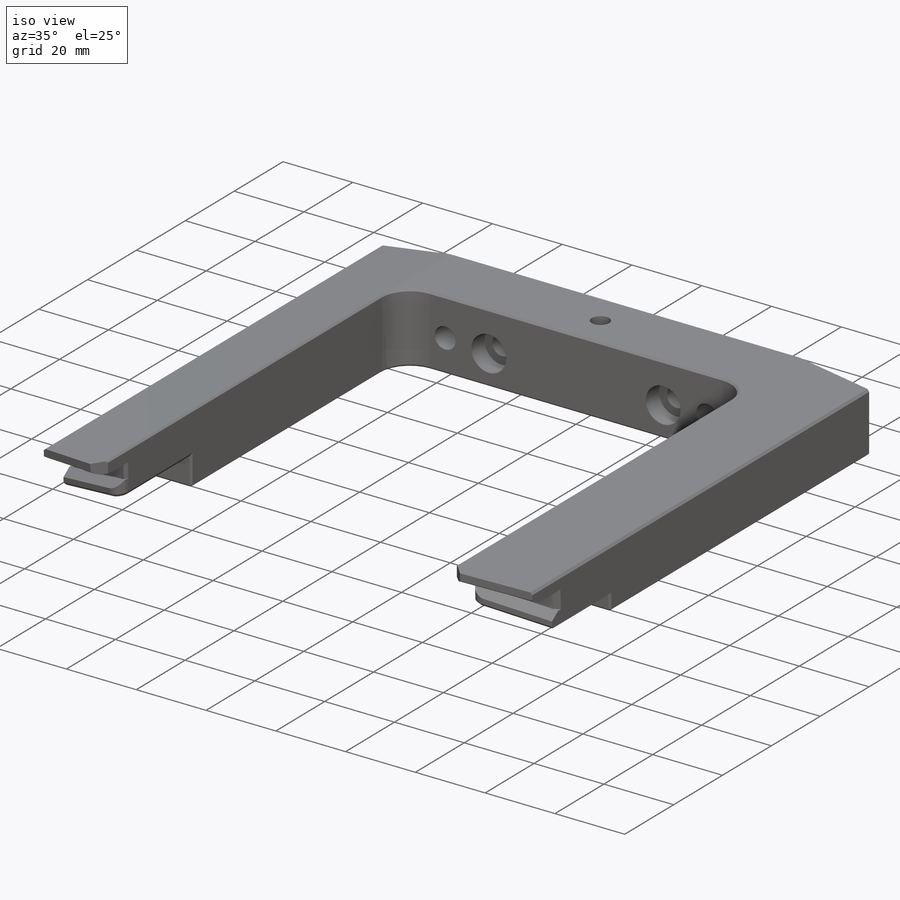
[diagram: iso view]
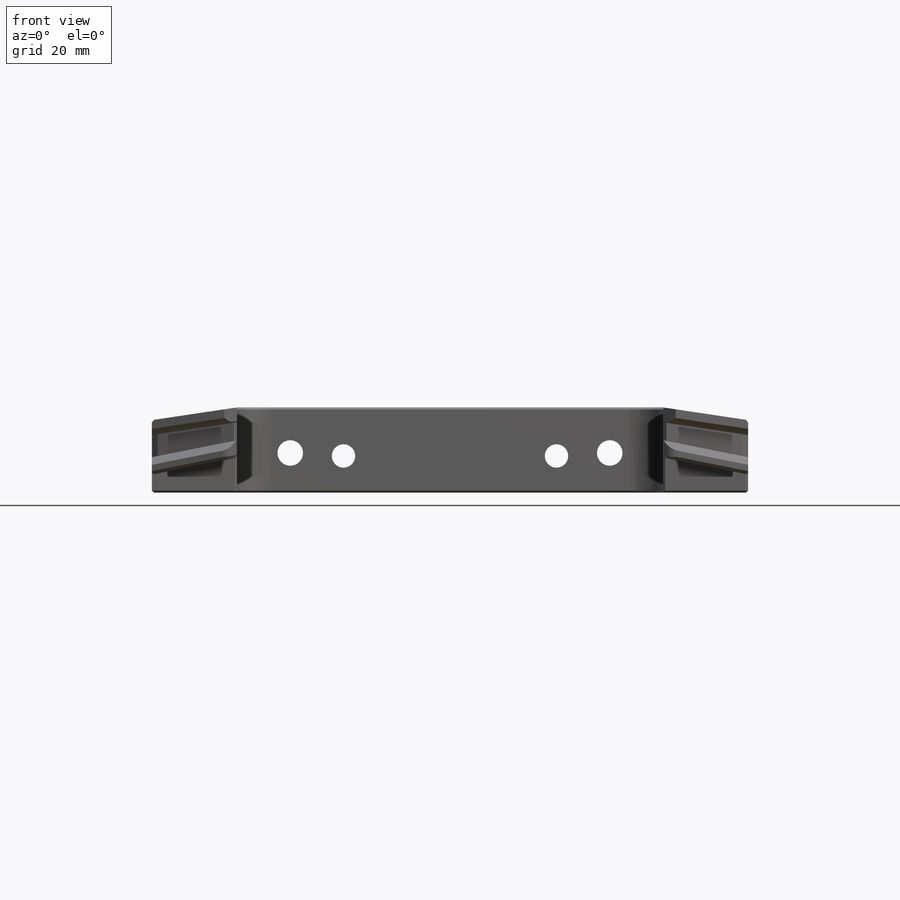
[diagram: front view]
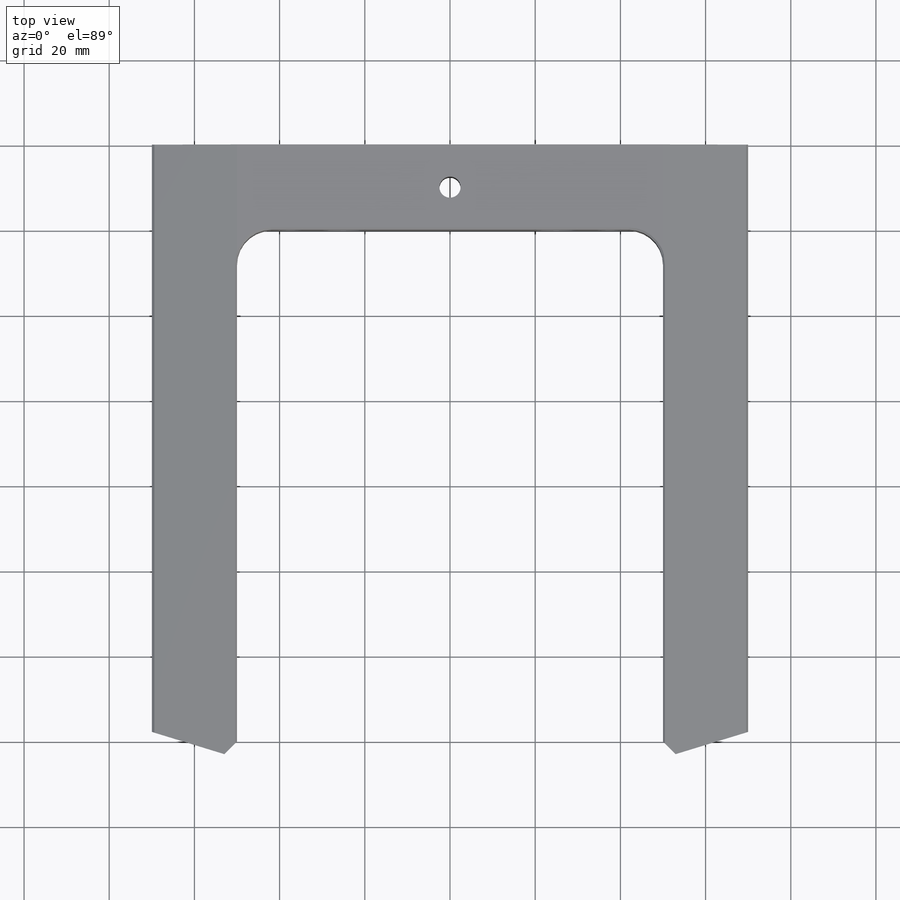
[diagram: top view]
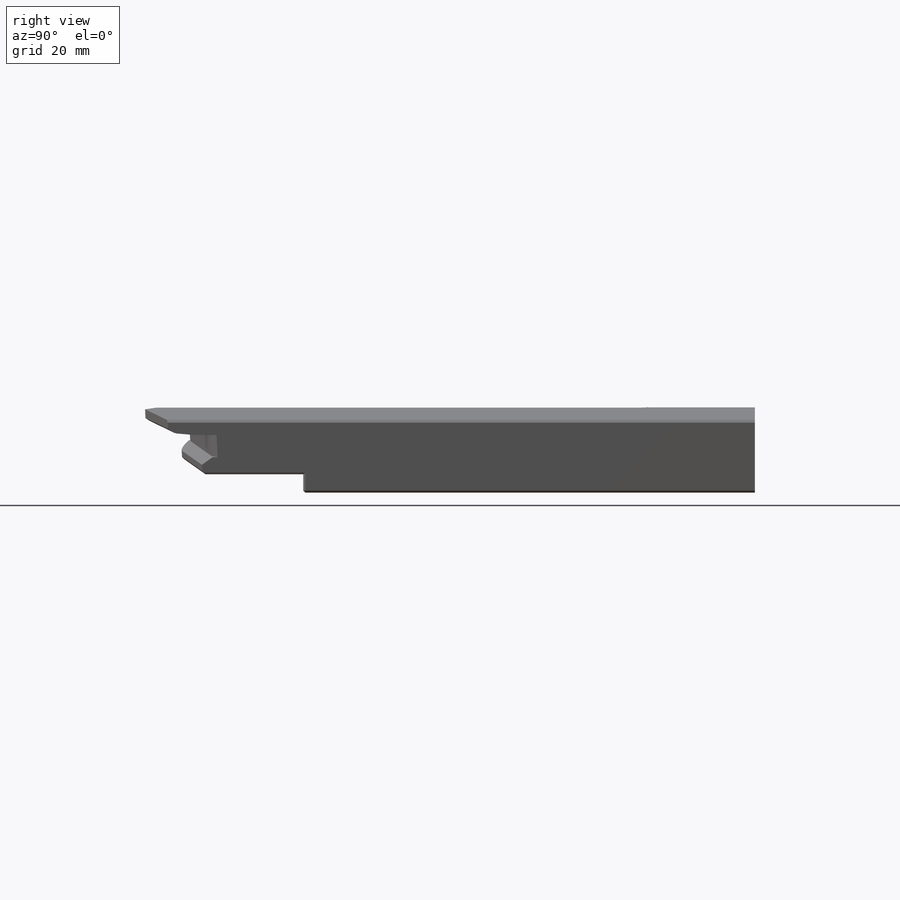
[diagram: right view]
SOLIDWORKS PART (.sldprt)
format: sldprt  version: not decoded by parser v0  size: 911,872 bytes
history: native  units: mm
features: sketch x33, cut_extrude x15, chamfer x10, extrude x8, plane x7, hole x4, thread x3, fillet x2, material x1, sweep x1 (+8 scaffold rows collapsed)
feature tree (92):
  scaffold x8  (default folders/planes/origin — collapsed)
  material  "2014 Legierung"
  plane  "Ebene vorne"
  plane  "Ebene oben"
  plane  "Ebene rechts"
  sketch  "Skizze1"  dims[D1=140.0mm D2=20.0mm]
  extrude  "Linear austragen1"  Depth=140mm
  sketch  "Skizze2"  dims[c1.D2=207.0mm c1.D6=90.0mm c1.D7=8.0mm c1.D1=100.0mm c1.D3=20.0mm c1.D4=85.0mm c1.D5=~0.923929mm c2.D4=185.0mm c2.D3=12.5mm c3.D4=120.0mm c3.D5=68.0mm c3.D2=35.0mm c4.D5=47.0mm]
  cut_extrude  "Schnitt-Linear austragen1"  [1 undecoded]
  sketch  "Skizze3"  dims[D1=20.0mm]
  extrude  "Linear austragen2"  Depth=25mm
  plane  "Ebene1"
  sketch  "Skizze7"  dims[c1.D1=20.0mm c2.D1=8.5deg]
  cut_extrude  "Schnitt-Linear austragen4"  [1 undecoded]
  hole  "M5"  Diameter=4.2mm Depth=14mm
  sketch  "Skizze9"  dims[c1.D1=18.0mm c1.D2=50.0mm c1.D3=25.0mm c2.D1=27.0mm]
  sketch  "Skizze8"  dims[hole-wizard template sketch: 46 standard entries collapsed; hole parameters kept: c15.Bohrerdurchmesser=4.2mm c15.Bohrungstiefe=14.0mm c15.D3=~14.816244mm c15.Spitzenwinkel=118.0deg]
  thread  "Bohrungsgewinde3"  Diameter=10mm  [1 undecoded]
  thread  "Bohrungsgewinde4"  Diameter=10mm  [1 undecoded]
  hole  "ø4H7 (2x)"  Diameter=4mm Depth=10mm
  sketch  "Skizze11"  dims[D1=40.0mm]
  sketch  "Skizze10"  dims[hole-wizard template sketch: 46 standard entries collapsed; hole parameters kept: c15.Bohrerdurchmesser=4.0mm c15.Bohrungstiefe=10.0mm c15.D3=~14.816244mm c15.Spitzenwinkel=118.0deg]
  chamfer  "Fase1"  Distance=7.5mm Angle=45deg
  sketch  "Skizze12"  dims[D1=3.5mm D2=~20.000003mm]
  cut_extrude  "Schnitt-Linear austragen5"  Depth=27.74mm
  sketch  "Skizze17"  dims[c1.D1=~20.252542mm c2.D1=~1.127483deg c3.D1=4.5mm c3.D2=3.0mm c4.D1=4.8mm c4.D2=~20.22957mm c5.D2=10.0deg c5.D1=1.0mm]
  cut_extrude  "Schnitt-Linear austragen6"  Depth=10mm
  chamfer  "Einführschräge"  Distance=1.5mm Angle=10deg
  sketch  "Skizze22"
  extrude  "Linear austragen4"  Depth=10mm
  sketch  "Skizze23"  dims[c1.D1=~141.862888mm c2.D1=90.0mm c2.D2=86.0mm c2.D3=23.0mm c3.D1=~20.215193mm c4.D1=15.5deg c4.D2=126.0mm c4.D3=5.0mm c4.D4=5.0mm c4.D5=15.0mm c5.D1=4.0mm]
  cut_extrude  "Schnitt-Linear austragen7"  Depth=8mm
  sketch  "Skizze24"  dims[c1.D1=5.0mm c1.D2=5.0mm c1.D3=126.0mm c1.D4=~20.215193mm c2.D4=15.5deg c2.D5=15.0mm]
  cut_extrude  "Schnitt-Linear austragen8"  Depth=8mm
  chamfer  "Fase5"  Distance=1mm Angle=45deg
  sketch  "Skizze26"  dims[D1=0.0mm D2=0.0mm]
  extrude  "Linear austragen5"  Depth=35.15mm
  chamfer  "Fase6"  Distance=3mm Angle=45deg
  sketch  "Skizze28"  dims[c1.D1=~17.188804mm c2.D1=17.0deg]
  cut_extrude  "Schnitt-Linear austragen9"  [1 undecoded]
  sketch  "Skizze29"  dims[c1.D1=~20.627272mm c2.D1=17.0deg]
  cut_extrude  "Schnitt-Linear austragen10"  [1 undecoded]
  chamfer  "Fase7"  Distance=6mm Angle=5deg
  plane  "Ebene2"
  sketch  "Skizze31"  dims[c1.D1=4.0mm c1.D2=~20.222123mm c2.D2=~8.858984deg c2.D1=4.2mm c3.D2=5.2mm]
  cut_extrude  "Schnitt-Linear austragen11"  Depth=29.7mm
  sketch  "Skizze32"  dims[D2=3.0mm D1=0.0mm]
  extrude  "Linear austragen6"  Depth=4mm
  plane  "Ebene3"
  sketch  "Skizze41"
  extrude  "Linear austragen11"  [1 undecoded]
  sketch  "Skizze44"
  cut_extrude  "Schnitt-Linear austragen15"  Depth=40mm
  sketch  "Skizze35"  dims[D1=5.2mm D2=4.2mm]
  cut_extrude  "Schnitt-Linear austragen13"  Depth=29.7mm
  sketch  "Skizze37"  dims[D1=3.0mm]
  extrude  "Linear austragen9"  Depth=4mm
  sketch  "Skizze45"
  extrude  "Linear austragen12"  [1 undecoded]
  sketch  "Skizze46"  dims[D1=0.0mm]
  cut_extrude  "Schnitt-Linear austragen16"  Depth=40mm
  chamfer  "Fase10"  Distance=0.8mm Angle=45deg
  fillet  "Verrundung1"  Radius=2.8mm
  chamfer  "Fase8"  Distance=2.5mm Angle=35deg
  hole  "M6x1.0 Gewindekernloch1"  Diameter=5mm Depth=25mm
  sketch  "Skizze48"  dims[D1=10.0mm]
  sketch  "Skizze47"  dims[hole-wizard template sketch: 46 standard entries collapsed; hole parameters kept: c15.Bohrerdurchmesser=5.0mm c15.Bohrungstiefe=25.0mm c15.D3=~14.816244mm c15.Spitzenwinkel=118.0deg]
  thread  "Bohrungsgewinde5"  Diameter=20mm  [1 undecoded]
  sketch  "Skizze49"  dims[D1=10.0mm]
  cut_extrude  "Schnitt-Linear austragen17"  [1 undecoded]
  chamfer  "Fase12"  Distance=5mm Angle=45deg
  sketch  "Skizze50"  dims[c1.D2=6.0mm c1.D3=5.0mm c1.D1=10.7mm c2.D3=75.0mm]
  cut_extrude  "ø6H7"  [1 undecoded]
  hole  "Stirnsenkung für M5 Zylinderschraube mit Innensechskant1"  Diameter=5.5mm Depth=20mm
  sketch  "Skizze52"  dims[D1=50.0mm D2=11.4mm]
  sketch  "Skizze51"  dims[hole-wizard template sketch: 42 standard entries collapsed; hole parameters kept: c12.Bohrungstiefe=20.0mm c12.Senkdurchmesser2=10.0mm c12.Senktiefe2=5.4mm]
  sketch  "Skizze53"
  cut_extrude  "Schnitt-Linear austragen19"  [1 undecoded]
  chamfer  "Fase13"  Distance=1.5mm Angle=30deg
  fillet  "Verrundung2"  Radius=2mm
  chamfer  "Fase15"  Distance=0.5mm Angle=45deg
  sketch  "3D-Skizze1"
  plane  "Ebene4"
  sketch  "Skizze55"  dims[D1=0.5mm]
  sweep  "Schnitt-Austragung2"
decode coverage: 60 of 76 modeling features carry decoded parameters
note: ~ marks probable driven/reference dimensions
note: 12 parameter values undecoded
summary: no parameter record found for 9 features; Diameter pulled from absorbed wizard sketch
note: suppression state not decoded; provenance and decode notes live in map.json
